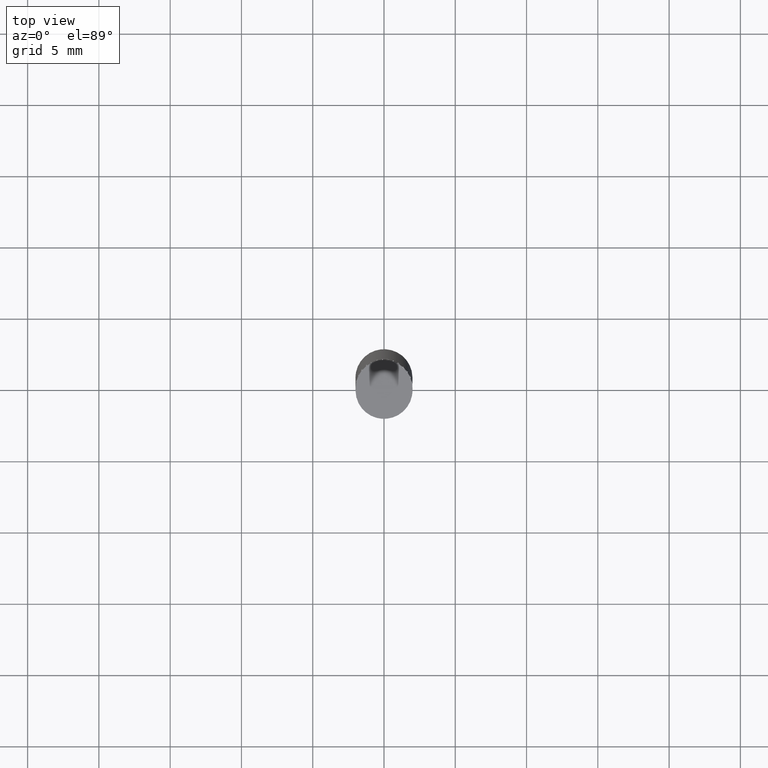
[diagram: clean part render]
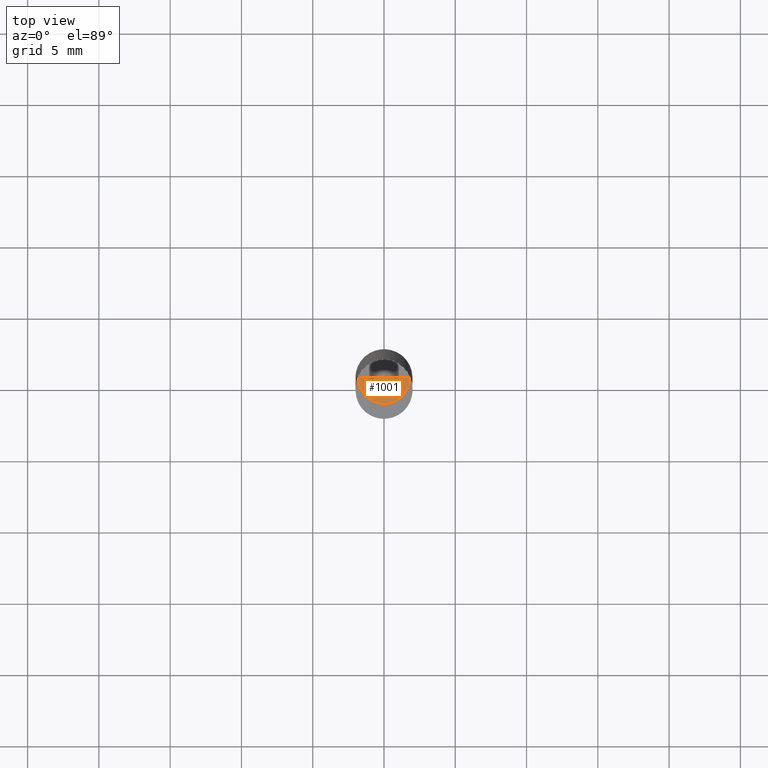
[diagram: same view with one face highlighted and labeled with its STEP entity id]
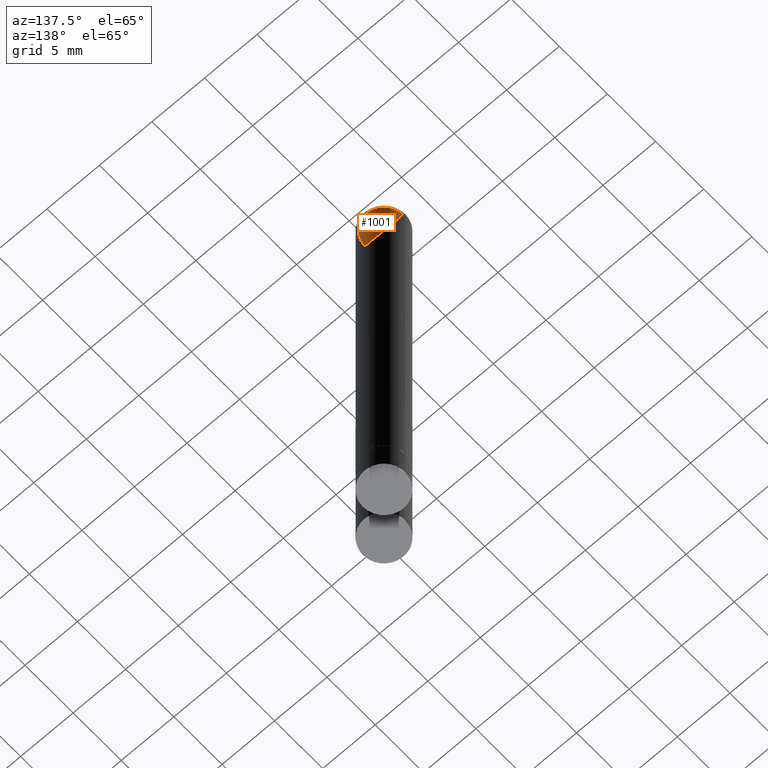
[diagram: same view with one face highlighted and labeled with its STEP entity id]
A machine part, top view. The second image highlights one B-rep face of the part: STEP entity #1001.
A second angle (auxiliary view) of the same face is appended — the face is thin or edge-on in the first view.
In plain terms, the highlighted face is a freeform B-spline surface patch.
Its self-contained STEP definition (entity closure, byte-faithful):
#688=CARTESIAN_POINT('',(1.8,0.0,40.0));
#692=CARTESIAN_POINT('',(-1.8,0.0,40.0));
#693=CARTESIAN_POINT('',(0.0,0.0,40.0));
#700=CARTESIAN_POINT('',(-1.8,-1.8,40.0));
#701=CARTESIAN_POINT('',(0.0,-1.8,40.0));
#702=CARTESIAN_POINT('',(1.8,-1.8,40.0));
#986=(
BOUNDED_SURFACE()
B_SPLINE_SURFACE(1,2,(
(#692,#700,#701,#702,#688),
(#693,#693,#693,#693,#693)
), .UNSPECIFIED.,.F.,.F.,.F.)
B_SPLINE_SURFACE_WITH_KNOTS((2,2),(3,2,3),(
0.0,1.0),(
0.0,0.5,1.0), .UNSPECIFIED.)
GEOMETRIC_REPRESENTATION_ITEM()
RATIONAL_B_SPLINE_SURFACE(((1.0,0.707106781187,1.0,0.707106781187,1.0),
(1.0,0.707106781187,1.0,0.707106781187,1.0)
))
REPRESENTATION_ITEM('')
SURFACE()
);
#987=(
BOUNDED_CURVE()
B_SPLINE_CURVE(2,(#688,#702,#701,#700,#692),.UNSPECIFIED.,.F.,.F.)
B_SPLINE_CURVE_WITH_KNOTS((3,2,3),
(0.0,0.5,1.0),.UNSPECIFIED.)
CURVE()
GEOMETRIC_REPRESENTATION_ITEM()
RATIONAL_B_SPLINE_CURVE((1.0,0.707106781187,1.0,0.707106781187,1.0))
REPRESENTATION_ITEM('')
);
#988=(
BOUNDED_CURVE()
B_SPLINE_CURVE(1,(#692,#693),.UNSPECIFIED.,.F.,.F.)
B_SPLINE_CURVE_WITH_KNOTS((2,2),
(0.0,1.0),.UNSPECIFIED.)
CURVE()
GEOMETRIC_REPRESENTATION_ITEM()
RATIONAL_B_SPLINE_CURVE((1.0,1.0))
REPRESENTATION_ITEM('')
);
#989=(
BOUNDED_CURVE()
B_SPLINE_CURVE(1,(#693,#688),.UNSPECIFIED.,.F.,.F.)
B_SPLINE_CURVE_WITH_KNOTS((2,2),
(0.0,1.0),.UNSPECIFIED.)
CURVE()
GEOMETRIC_REPRESENTATION_ITEM()
RATIONAL_B_SPLINE_CURVE((1.0,1.0))
REPRESENTATION_ITEM('')
);
#990=VERTEX_POINT('',#688);
#991=VERTEX_POINT('',#692);
#992=VERTEX_POINT('',#693);
#993=EDGE_CURVE('',#990,#991,#987,.T.);
#994=EDGE_CURVE('',#991,#992,#988,.T.);
#995=EDGE_CURVE('',#992,#990,#989,.T.);
#996=ORIENTED_EDGE('',*,*,#993,.T.);
#997=ORIENTED_EDGE('',*,*,#994,.T.);
#998=ORIENTED_EDGE('',*,*,#995,.T.);
#999=EDGE_LOOP('',(#996,#997,#998));
#1000=FACE_OUTER_BOUND('',#999,.T.);
#1001=ADVANCED_FACE('',(#1000),#986,.T.);